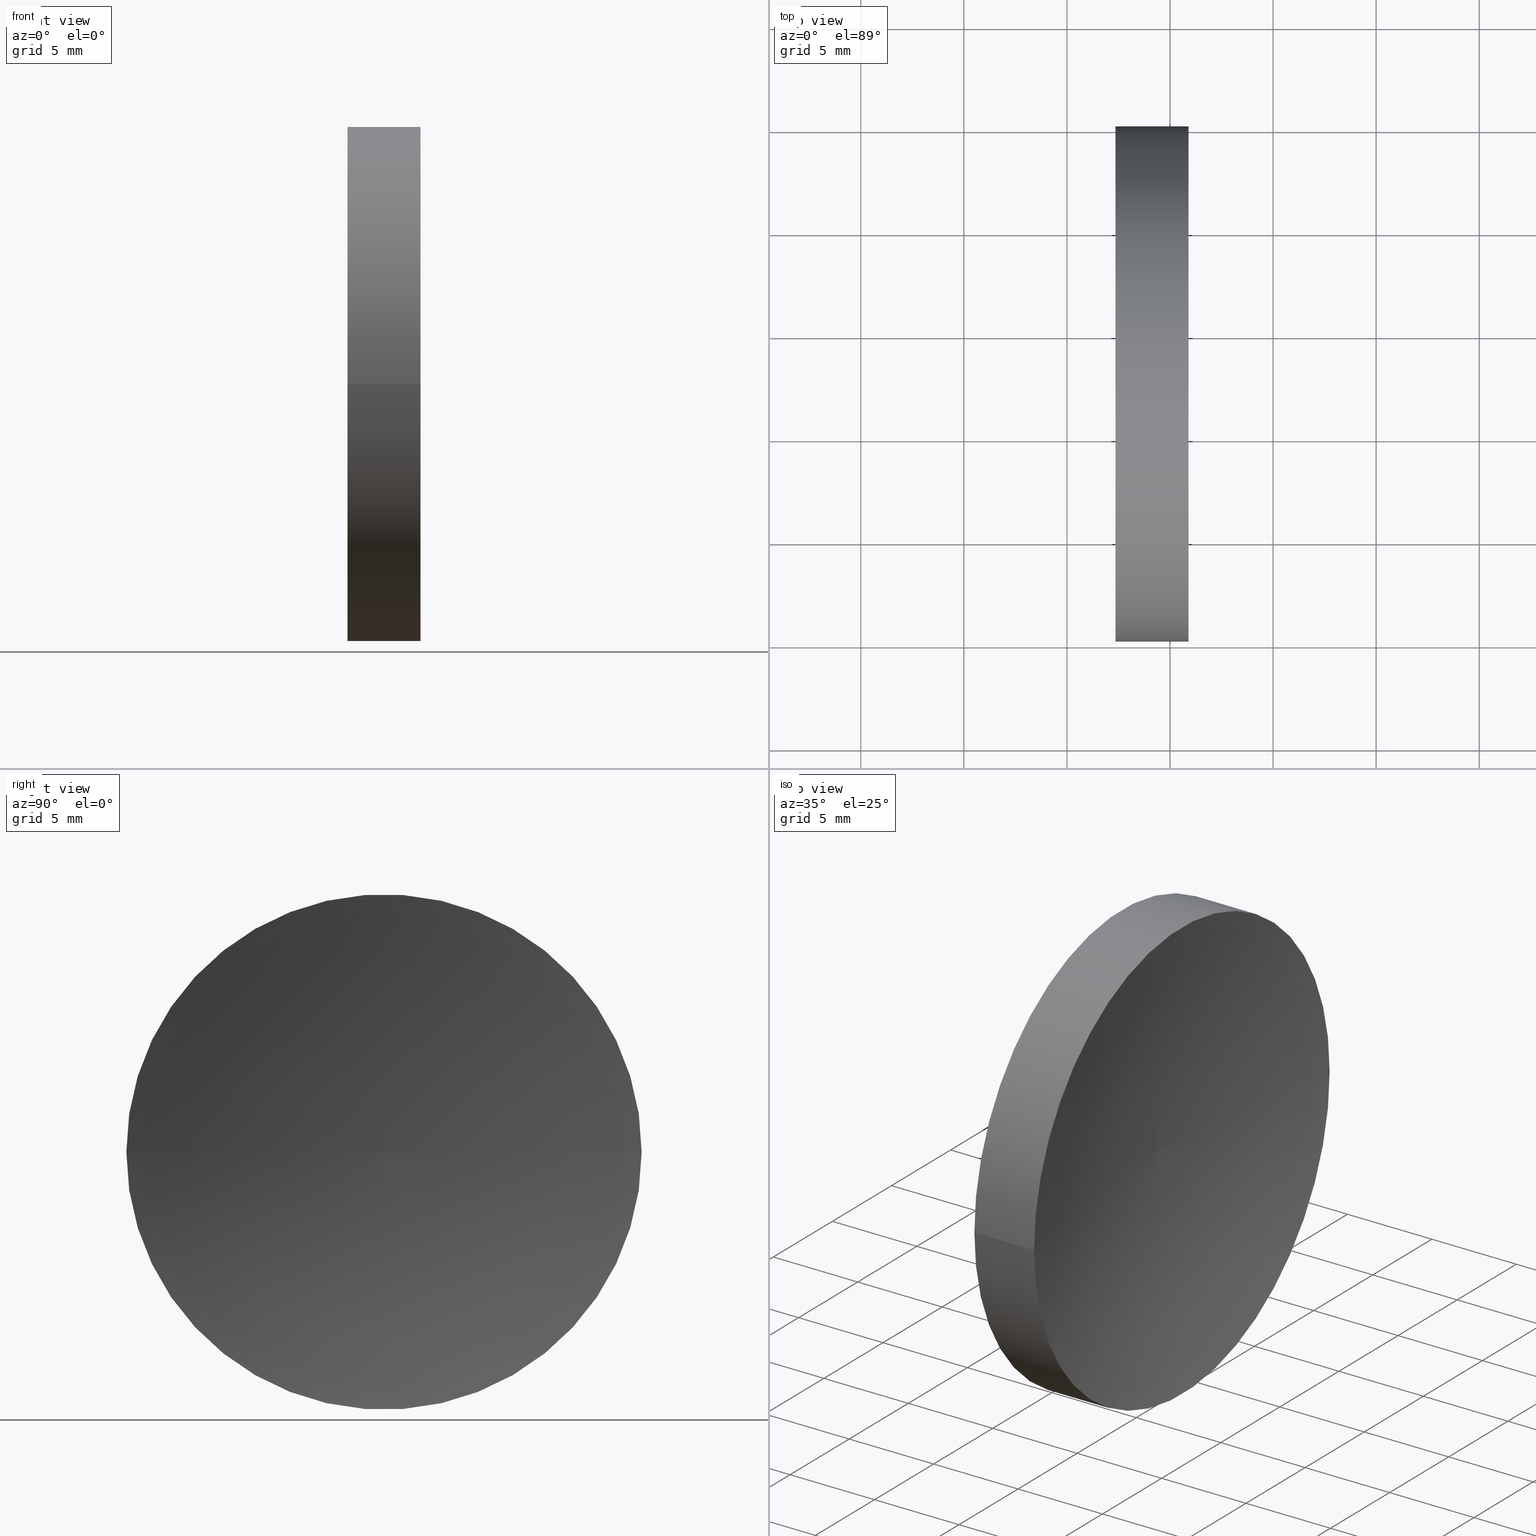
[diagram: canonical four-view strip — front | top / right | iso, engineering-drawing reading convention]
A machine part, canonical four-view strip (front | top / right | iso — engineering-drawing reading convention). The complete STEP part file that produces these views, byte-faithful:
ISO-10303-21;
HEADER;
FILE_DESCRIPTION (( 'STEP AP214' ),
    '1' );
FILE_NAME ('120155.STEP',
    '2019-06-20T06:37:28',
    ( '' ),
    ( '' ),
    'SwSTEP 2.0',
    'SolidWorks 2016',
    '' );
FILE_SCHEMA (( 'AUTOMOTIVE_DESIGN' ));
ENDSEC;

DATA;
#1 = PRODUCT_DEFINITION_CONTEXT ( 'detailed design', #44, 'design' ) ;
#2 = PRODUCT_DEFINITION_FORMATION_WITH_SPECIFIED_SOURCE ( '�κ�', '', #48, .NOT_KNOWN. ) ;
#3 = PRESENTATION_STYLE_ASSIGNMENT (( #111 ) ) ;
#4 = EDGE_LOOP ( 'NONE', ( #101, #72, #66 ) ) ;
#5 = ORIENTED_EDGE ( 'NONE', *, *, #38, .F. ) ;
#6 = SURFACE_SIDE_STYLE ('',( #121 ) ) ;
#7 = CARTESIAN_POINT ( 'NONE',  ( 110.9981901286809900, 32.57659115087562200, -2.614329961451197500E-019 ) ) ;
#8 = PRODUCT_RELATED_PRODUCT_CATEGORY ( 'part', '', ( #48 ) ) ;
#9 = MANIFOLD_SOLID_BREP ( '��ת1', #105 ) ;
#10 =( NAMED_UNIT ( * ) PLANE_ANGLE_UNIT ( ) SI_UNIT ( $, .RADIAN. ) );
#11 = AXIS2_PLACEMENT_3D ( 'NONE', #7, #81, #149 ) ;
#12 =( GEOMETRIC_REPRESENTATION_CONTEXT ( 3 ) GLOBAL_UNCERTAINTY_ASSIGNED_CONTEXT ( ( #103 ) ) GLOBAL_UNIT_ASSIGNED_CONTEXT ( ( #61, #10, #154 ) ) REPRESENTATION_CONTEXT ( 'NONE', 'WORKASPACE' ) );
#13 = ADVANCED_FACE ( 'NONE', ( #73 ), #130, .F. ) ;
#14 =( NAMED_UNIT ( * ) PLANE_ANGLE_UNIT ( ) SI_UNIT ( $, .RADIAN. ) );
#15 = DIRECTION ( 'NONE',  ( -5.551115123125782700E-016, -1.000000000000000000, 0.0000000000000000000 ) ) ;
#16 = CARTESIAN_POINT ( 'NONE',  ( 55.00739462442118800, 45.07872591329309100, 1.530808498934191500E-015 ) ) ;
#17 = CYLINDRICAL_SURFACE ( 'NONE', #65, 12.50000000000000000 ) ;
#18 = AXIS2_PLACEMENT_3D ( 'NONE', #69, #162, #15 ) ;
#19 =( LENGTH_UNIT ( ) NAMED_UNIT ( * ) SI_UNIT ( .MILLI., .METRE. ) );
#20 = EDGE_LOOP ( 'NONE', ( #100, #132, #155, #39 ) ) ;
#21 = DIRECTION ( 'NONE',  ( -1.000000000000000000, 7.636108817321419600E-016, -0.0000000000000000000 ) ) ;
#22 = APPLICATION_CONTEXT ( 'automotive_design' ) ;
#23 = ORIENTED_EDGE ( 'NONE', *, *, #36, .F. ) ;
#24 = CIRCLE ( 'NONE', #11, 51.64000000000000800 ) ;
#25 = SHAPE_DEFINITION_REPRESENTATION ( #91, #86 ) ;
#26 = FACE_OUTER_BOUND ( 'NONE', #20, .T. ) ;
#27 =( GEOMETRIC_REPRESENTATION_CONTEXT ( 3 ) GLOBAL_UNCERTAINTY_ASSIGNED_CONTEXT ( ( #123 ) ) GLOBAL_UNIT_ASSIGNED_CONTEXT ( ( #19, #141, #55 ) ) REPRESENTATION_CONTEXT ( 'NONE', 'WORKASPACE' ) );
#28 = CIRCLE ( 'NONE', #152, 12.50000000000000400 ) ;
#29 = CIRCLE ( 'NONE', #58, 12.49999999999999600 ) ;
#30 = ORIENTED_EDGE ( 'NONE', *, *, #46, .T. ) ;
#31 = CARTESIAN_POINT ( 'NONE',  ( 57.35819015802111000, 32.57872591329309800, 0.0000000000000000000 ) ) ;
#32 = DIRECTION ( 'NONE',  ( -5.551115123125784700E-016, -1.000000000000000000, 0.0000000000000000000 ) ) ;
#33 = UNCERTAINTY_MEASURE_WITH_UNIT (LENGTH_MEASURE( 1.000000000000000100E-005 ), #34, 'distance_accuracy_value', 'NONE');
#34 =( LENGTH_UNIT ( ) NAMED_UNIT ( * ) SI_UNIT ( .MILLI., .METRE. ) );
#35 = CARTESIAN_POINT ( 'NONE',  ( 60.89443551505594600, 45.07872591329309800, 1.530808498934192300E-015 ) ) ;
#36 = EDGE_CURVE ( 'NONE', #94, #99, #165, .T. ) ;
#37 = ORIENTED_EDGE ( 'NONE', *, *, #102, .F. ) ;
#38 = EDGE_CURVE ( 'NONE', #94, #109, #87, .T. ) ;
#39 = ORIENTED_EDGE ( 'NONE', *, *, #46, .F. ) ;
#40 = ADVANCED_FACE ( 'NONE', ( #117 ), #163, .F. ) ;
#41 = CARTESIAN_POINT ( 'NONE',  ( 110.9981901286809900, 32.58086067571049000, 0.0000000000000000000 ) ) ;
#42 = DIRECTION ( 'NONE',  ( -5.551115123125780700E-016, -1.000000000000000000, 0.0000000000000000000 ) ) ;
#43 = FILL_AREA_STYLE ('',( #114 ) ) ;
#44 = APPLICATION_CONTEXT ( 'automotive_design' ) ;
#45 = DIRECTION ( 'NONE',  ( 1.000000000000000000, 0.0000000000000000000, 0.0000000000000000000 ) ) ;
#46 = EDGE_CURVE ( 'NONE', #128, #99, #59, .T. ) ;
#47 = FACE_OUTER_BOUND ( 'NONE', #51, .T. ) ;
#48 = PRODUCT ( '120155', '120155', '', ( #63 ) ) ;
#49 = PRESENTATION_LAYER_ASSIGNMENT (  '', '', ( #144 ) ) ;
#50 = DIRECTION ( 'NONE',  ( -5.551115123125780700E-016, -1.000000000000000000, 0.0000000000000000000 ) ) ;
#51 = EDGE_LOOP ( 'NONE', ( #80, #153, #85, #23 ) ) ;
#52 = CARTESIAN_POINT ( 'NONE',  ( 60.89443551505593200, 20.07872591329308100, 0.0000000000000000000 ) ) ;
#53 = CARTESIAN_POINT ( 'NONE',  ( 57.35819015802111000, 32.57872591329309800, 0.0000000000000000000 ) ) ;
#54 = CARTESIAN_POINT ( 'NONE',  ( 59.35819017280580600, 32.57872591329309800, 0.0000000000000000000 ) ) ;
#55 =( NAMED_UNIT ( * ) SI_UNIT ( $, .STERADIAN. ) SOLID_ANGLE_UNIT ( ) );
#56 = LINE ( 'NONE', #16, #156 ) ;
#57 = AXIS2_PLACEMENT_3D ( 'NONE', #31, #139, #32 ) ;
#58 = AXIS2_PLACEMENT_3D ( 'NONE', #53, #147, #96 ) ;
#59 = CIRCLE ( 'NONE', #57, 12.49999999999999600 ) ;
#60 = EDGE_LOOP ( 'NONE', ( #37, #160, #5 ) ) ;
#61 =( LENGTH_UNIT ( ) NAMED_UNIT ( * ) SI_UNIT ( .MILLI., .METRE. ) );
#62 = AXIS2_PLACEMENT_3D ( 'NONE', #124, #151, #70 ) ;
#63 = PRODUCT_CONTEXT ( 'NONE', #22, 'mechanical' ) ;
#64 = AXIS2_PLACEMENT_3D ( 'NONE', #138, #82, #42 ) ;
#65 = AXIS2_PLACEMENT_3D ( 'NONE', #164, #98, #83 ) ;
#66 = ORIENTED_EDGE ( 'NONE', *, *, #38, .T. ) ;
#67 = DIRECTION ( 'NONE',  ( -1.000000000000000000, 0.0000000000000000000, 0.0000000000000000000 ) ) ;
#68 = DIRECTION ( 'NONE',  ( -1.000000000000000000, 7.636108817321419600E-016, -0.0000000000000000000 ) ) ;
#69 = CARTESIAN_POINT ( 'NONE',  ( 55.00739462442118100, 32.57872591329309800, 0.0000000000000000000 ) ) ;
#70 = DIRECTION ( 'NONE',  ( -7.636108817321419600E-016, -1.000000000000000000, 0.0000000000000000000 ) ) ;
#71 = AXIS2_PLACEMENT_3D ( 'NONE', #125, #113, #45 ) ;
#72 = ORIENTED_EDGE ( 'NONE', *, *, #89, .F. ) ;
#73 = FACE_OUTER_BOUND ( 'NONE', #4, .T. ) ;
#74 = SURFACE_STYLE_FILL_AREA ( #43 ) ;
#75 = APPLICATION_PROTOCOL_DEFINITION ( 'draft international standard', 'automotive_design', 1998, #22 ) ;
#76 = CARTESIAN_POINT ( 'NONE',  ( 55.00739462442117400, 20.07872591329309500, 0.0000000000000000000 ) ) ;
#77 = DIRECTION ( 'NONE',  ( -7.636108817321419600E-016, -1.000000000000000000, 0.0000000000000000000 ) ) ;
#78 = MECHANICAL_DESIGN_GEOMETRIC_PRESENTATION_REPRESENTATION (  '', ( #104 ), #27 ) ;
#79 = AXIS2_PLACEMENT_3D ( 'NONE', #129, #143, #77 ) ;
#80 = ORIENTED_EDGE ( 'NONE', *, *, #89, .T. ) ;
#81 = DIRECTION ( 'NONE',  ( -9.351536221073556900E-032, -1.224646799147353200E-016, 1.000000000000000000 ) ) ;
#82 = DIRECTION ( 'NONE',  ( -1.000000000000000000, 7.636108817321419600E-016, -0.0000000000000000000 ) ) ;
#83 = DIRECTION ( 'NONE',  ( -5.551115123125782700E-016, -1.000000000000000000, 0.0000000000000000000 ) ) ;
#84 = CARTESIAN_POINT ( 'NONE',  ( 57.35819015802111000, 32.57872591329309100, 0.0000000000000000000 ) ) ;
#85 = ORIENTED_EDGE ( 'NONE', *, *, #115, .F. ) ;
#86 = ADVANCED_BREP_SHAPE_REPRESENTATION ( '120155', ( #9, #71 ), #158 ) ;
#87 = CIRCLE ( 'NONE', #126, 51.64000000000000800 ) ;
#88 = TOROIDAL_SURFACE ( 'NONE', #62, -0.002134762417434476400, 51.64000000000000800 ) ;
#89 = EDGE_CURVE ( 'NONE', #94, #135, #93, .T. ) ;
#90 = CYLINDRICAL_SURFACE ( 'NONE', #18, 12.50000000000000000 ) ;
#91 = PRODUCT_DEFINITION_SHAPE ( 'NONE', 'NONE',  #134 ) ;
#92 = VECTOR ( 'NONE', #21, 1000.000000000000000 ) ;
#93 = CIRCLE ( 'NONE', #64, 12.50000000000000400 ) ;
#94 = VERTEX_POINT ( 'NONE', #52 ) ;
#95 = FILL_AREA_STYLE_COLOUR ( '', #97 ) ;
#96 = DIRECTION ( 'NONE',  ( -5.551115123125784700E-016, -1.000000000000000000, 0.0000000000000000000 ) ) ;
#97 = COLOUR_RGB ( '',1.000000000000000000, 1.000000000000000000, 1.000000000000000000 ) ;
#98 = DIRECTION ( 'NONE',  ( -1.000000000000000000, 7.636108817321419600E-016, -0.0000000000000000000 ) ) ;
#99 = VERTEX_POINT ( 'NONE', #137 ) ;
#100 = ORIENTED_EDGE ( 'NONE', *, *, #146, .F. ) ;
#101 = ORIENTED_EDGE ( 'NONE', *, *, #110, .F. ) ;
#102 = EDGE_CURVE ( 'NONE', #135, #94, #28, .T. ) ;
#103 = UNCERTAINTY_MEASURE_WITH_UNIT (LENGTH_MEASURE( 1.000000000000000100E-005 ), #61, 'distance_accuracy_value', 'NONE');
#104 = STYLED_ITEM ( 'NONE', ( #3 ), #86 ) ;
#105 = CLOSED_SHELL ( 'NONE', ( #118, #148, #13, #159, #40 ) ) ;
#106 = DIRECTION ( 'NONE',  ( 7.636108817321419600E-016, 1.000000000000000000, 0.0000000000000000000 ) ) ;
#107 = DIRECTION ( 'NONE',  ( -1.000000000000000000, 7.636108817321419600E-016, -0.0000000000000000000 ) ) ;
#108 =( NAMED_UNIT ( * ) SI_UNIT ( $, .STERADIAN. ) SOLID_ANGLE_UNIT ( ) );
#109 = VERTEX_POINT ( 'NONE', #54 ) ;
#110 = EDGE_CURVE ( 'NONE', #135, #109, #24, .T. ) ;
#111 = SURFACE_STYLE_USAGE ( .BOTH. , #6 ) ;
#112 = SURFACE_STYLE_USAGE ( .BOTH. , #142 ) ;
#113 = DIRECTION ( 'NONE',  ( 0.0000000000000000000, 0.0000000000000000000, 1.000000000000000000 ) ) ;
#114 = FILL_AREA_STYLE_COLOUR ( '', #145 ) ;
#115 = EDGE_CURVE ( 'NONE', #99, #128, #29, .T. ) ;
#116 = PRESENTATION_STYLE_ASSIGNMENT (( #112 ) ) ;
#117 = FACE_OUTER_BOUND ( 'NONE', #136, .T. ) ;
#118 = ADVANCED_FACE ( 'NONE', ( #47 ), #90, .T. ) ;
#119 = MECHANICAL_DESIGN_GEOMETRIC_PRESENTATION_REPRESENTATION (  '', ( #144 ), #12 ) ;
#120 = CARTESIAN_POINT ( 'NONE',  ( 60.89443551505593900, 32.57872591329309100, 0.0000000000000000000 ) ) ;
#121 = SURFACE_STYLE_FILL_AREA ( #161 ) ;
#122 = DIRECTION ( 'NONE',  ( 1.000000000000000000, -7.636108817321419600E-016, 0.0000000000000000000 ) ) ;
#123 = UNCERTAINTY_MEASURE_WITH_UNIT (LENGTH_MEASURE( 1.000000000000000100E-005 ), #19, 'distance_accuracy_value', 'NONE');
#124 = CARTESIAN_POINT ( 'NONE',  ( 110.9981901286809900, 32.57872591329305600, 0.0000000000000000000 ) ) ;
#125 = CARTESIAN_POINT ( 'NONE',  ( 0.0000000000000000000, 0.0000000000000000000, 0.0000000000000000000 ) ) ;
#126 = AXIS2_PLACEMENT_3D ( 'NONE', #41, #140, #67 ) ;
#127 = PRESENTATION_LAYER_ASSIGNMENT (  '', '', ( #104 ) ) ;
#128 = VERTEX_POINT ( 'NONE', #150 ) ;
#129 = CARTESIAN_POINT ( 'NONE',  ( 110.9981901286809900, 32.57872591329305600, 0.0000000000000000000 ) ) ;
#130 = TOROIDAL_SURFACE ( 'NONE', #79, -0.002134762417434476400, 51.64000000000000800 ) ;
#131 = APPLICATION_PROTOCOL_DEFINITION ( 'draft international standard', 'automotive_design', 1998, #44 ) ;
#132 = ORIENTED_EDGE ( 'NONE', *, *, #102, .T. ) ;
#133 = ORIENTED_EDGE ( 'NONE', *, *, #115, .T. ) ;
#134 = PRODUCT_DEFINITION ( 'δ֪', '', #2, #1 ) ;
#135 = VERTEX_POINT ( 'NONE', #35 ) ;
#136 = EDGE_LOOP ( 'NONE', ( #133, #30 ) ) ;
#137 = CARTESIAN_POINT ( 'NONE',  ( 57.35819015802110200, 20.07872591329309800, 0.0000000000000000000 ) ) ;
#138 = CARTESIAN_POINT ( 'NONE',  ( 60.89443551505593900, 32.57872591329309100, 0.0000000000000000000 ) ) ;
#139 = DIRECTION ( 'NONE',  ( -1.000000000000000000, 7.636108817321419600E-016, -0.0000000000000000000 ) ) ;
#140 = DIRECTION ( 'NONE',  ( 0.0000000000000000000, -0.0000000000000000000, -1.000000000000000000 ) ) ;
#141 =( NAMED_UNIT ( * ) PLANE_ANGLE_UNIT ( ) SI_UNIT ( $, .RADIAN. ) );
#142 = SURFACE_SIDE_STYLE ('',( #74 ) ) ;
#143 = DIRECTION ( 'NONE',  ( -1.000000000000000000, 7.636108817321419600E-016, -0.0000000000000000000 ) ) ;
#144 = STYLED_ITEM ( 'NONE', ( #116 ), #9 ) ;
#145 = COLOUR_RGB ( '',1.000000000000000000, 1.000000000000000000, 1.000000000000000000 ) ;
#146 = EDGE_CURVE ( 'NONE', #135, #128, #56, .T. ) ;
#147 = DIRECTION ( 'NONE',  ( -1.000000000000000000, 7.636108817321419600E-016, -0.0000000000000000000 ) ) ;
#148 = ADVANCED_FACE ( 'NONE', ( #166 ), #88, .F. ) ;
#149 = DIRECTION ( 'NONE',  ( 0.0000000000000000000, -1.000000000000000000, -1.224646799147353200E-016 ) ) ;
#150 = CARTESIAN_POINT ( 'NONE',  ( 57.35819015802111700, 45.07872591329309100, 1.530808498934191900E-015 ) ) ;
#151 = DIRECTION ( 'NONE',  ( -1.000000000000000000, 7.636108817321419600E-016, -0.0000000000000000000 ) ) ;
#152 = AXIS2_PLACEMENT_3D ( 'NONE', #120, #68, #50 ) ;
#153 = ORIENTED_EDGE ( 'NONE', *, *, #146, .T. ) ;
#154 =( NAMED_UNIT ( * ) SI_UNIT ( $, .STERADIAN. ) SOLID_ANGLE_UNIT ( ) );
#155 = ORIENTED_EDGE ( 'NONE', *, *, #36, .T. ) ;
#156 = VECTOR ( 'NONE', #107, 1000.000000000000000 ) ;
#157 = AXIS2_PLACEMENT_3D ( 'NONE', #84, #122, #106 ) ;
#158 =( GEOMETRIC_REPRESENTATION_CONTEXT ( 3 ) GLOBAL_UNCERTAINTY_ASSIGNED_CONTEXT ( ( #33 ) ) GLOBAL_UNIT_ASSIGNED_CONTEXT ( ( #34, #14, #108 ) ) REPRESENTATION_CONTEXT ( 'NONE', 'WORKASPACE' ) );
#159 = ADVANCED_FACE ( 'NONE', ( #26 ), #17, .T. ) ;
#160 = ORIENTED_EDGE ( 'NONE', *, *, #110, .T. ) ;
#161 = FILL_AREA_STYLE ('',( #95 ) ) ;
#162 = DIRECTION ( 'NONE',  ( -1.000000000000000000, 7.636108817321419600E-016, -0.0000000000000000000 ) ) ;
#163 = PLANE ( 'NONE',  #157 ) ;
#164 = CARTESIAN_POINT ( 'NONE',  ( 55.00739462442118100, 32.57872591329309800, 0.0000000000000000000 ) ) ;
#165 = LINE ( 'NONE', #76, #92 ) ;
#166 = FACE_OUTER_BOUND ( 'NONE', #60, .T. ) ;
ENDSEC;
END-ISO-10303-21;
